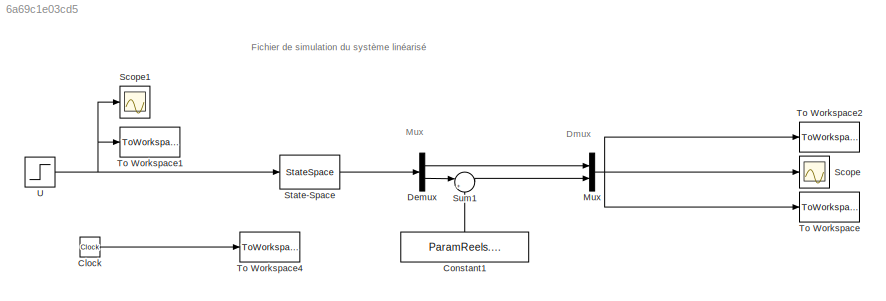
MODEL mdl_6a69c1e03cd5
KIND model
CONFIG AbsTol = auto
CONFIG EnableMultiTasking = on
CONFIG FixedStep = auto
CONFIG MaxStep = auto
CONFIG MinStep = auto
CONFIG RelTol = 1e-3
CONFIG SampleTimeConstraint = Unconstrained
CONFIG SolverName = ode45
CONFIG StartTime = 0.0
CONFIG StopTime = 10.0
BLOCK [Clock] Clock
BLOCK [Constant] Constant1
  NameLocation = right
  Value = ParamReels.Equilibre.X2e
BLOCK [Demux] Demux
  DisplayOption = none
  Outputs = 2
BLOCK [Mux] Mux
  DisplayOption = bar
  Inputs = 2
BLOCK [Scope] Scope
  Floating = off
  NumInputPorts = 1
  ScopeSpecificationString = Simulink.scopes.TimeScopeBlockCfg('CurrentConfiguration', extmgr.ConfigurationSet(extmgr.Configuration('Core','General UI',true),extmgr.Configuration('Core','Source UI',true),extmgr.Configuration('Sources','WiredSimulink',true,'DataLoggingSaveFormat','StructureWithTime','DataLoggingLimitDataPoints',true,'DataLoggingDecimation','1','DataLoggingDecimateData',true),extmgr.Configuration('Visuals','Tim...<+872ch>
BLOCK [Scope] Scope1
  Floating = off
  NumInputPorts = 1
  ScopeSpecificationString = Simulink.scopes.TimeScopeBlockCfg('CurrentConfiguration', extmgr.ConfigurationSet(extmgr.Configuration('Core','General UI',true),extmgr.Configuration('Core','Source UI',true),extmgr.Configuration('Sources','WiredSimulink',true,'DataLoggingSaveFormat','StructureWithTime','DataLoggingLimitDataPoints',true,'DataLoggingDecimation','1','DataLoggingDecimateData',true,'DataLoggingVariableName','ScopeData...<+1784ch>
BLOCK [StateSpace] State-Space
  A = ParamReels.A
  B = ParamReels.B
  C = eye(2)
  D = zeros(2,1)
  InitialCondition = ParamReels.X0lin
BLOCK [Sum] Sum1
  InputSameDT = on
  Inputs = |++
  OutDataTypeStr = Inherit: Same as first input
  SaturateOnIntegerOverflow = on
BLOCK [ToWorkspace] To Workspace
  MaxDataPoints = inf
  SampleTime = ParamReels.Te
  VariableName = XReel
BLOCK [ToWorkspace] To Workspace1
  MaxDataPoints = inf
  SampleTime = ParamReels.Te
  VariableName = UReel
BLOCK [ToWorkspace] To Workspace2
  MaxDataPoints = inf
  SampleTime = ParamReels.Te
  VariableName = YReel
BLOCK [ToWorkspace] To Workspace4
  MaxDataPoints = inf
  SampleTime = ParamReels.Te
  VariableName = Tps
BLOCK [Step] U
  After = ParamReels.Equilibre.Ue + 1
  Before = ParamReels.Equilibre.Ue
  SampleTime = 0
  Time = 4
ANNOTATION (root): Dmux
ANNOTATION (root): Fichier de simulation du système linéarisé
ANNOTATION (root): Mux
LINE Clock:1 -> To Workspace4:1
LINE Constant1:1 -> Sum1:2
LINE Demux:1 -> Mux:1
LINE Demux:2 -> Sum1:1
NET Mux:1 -> Scope:1, To Workspace2:1, To Workspace:1
LINE State-Space:1 -> Demux:1
LINE Sum1:1 -> Mux:2
NET U:1 -> Scope1:1, State-Space:1, To Workspace1:1
note: NET lines group one-source signal fan-out (src -> all destinations, sorted); 1:1 wires keep LINE
